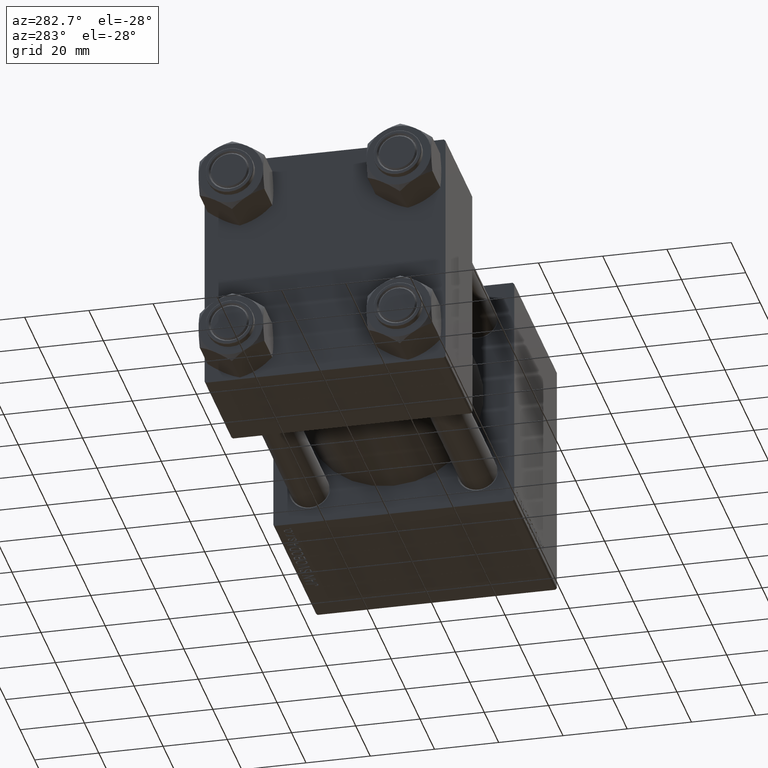
[diagram: clean part render]
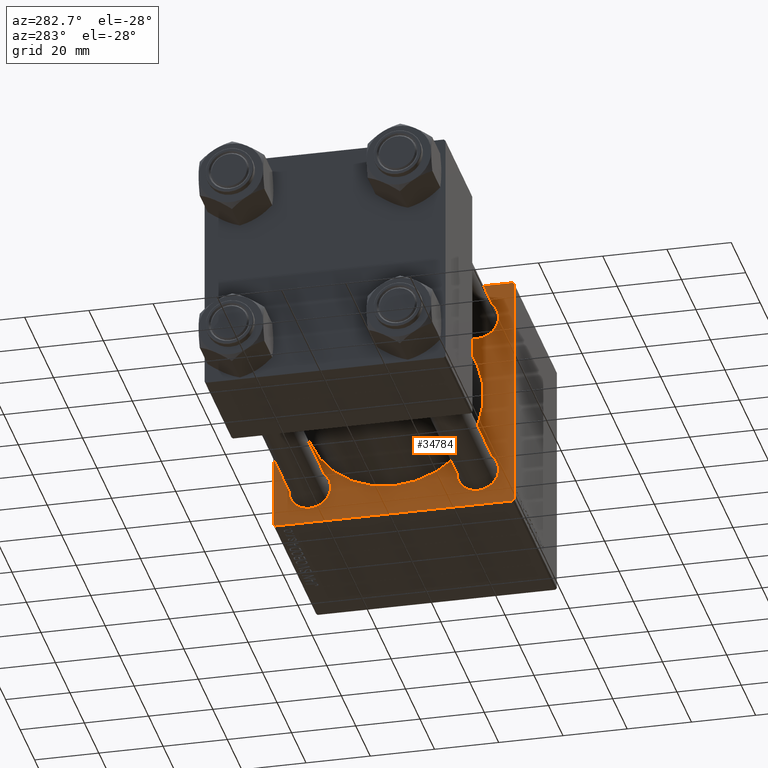
[diagram: same view with one face highlighted and labeled with its STEP entity id]
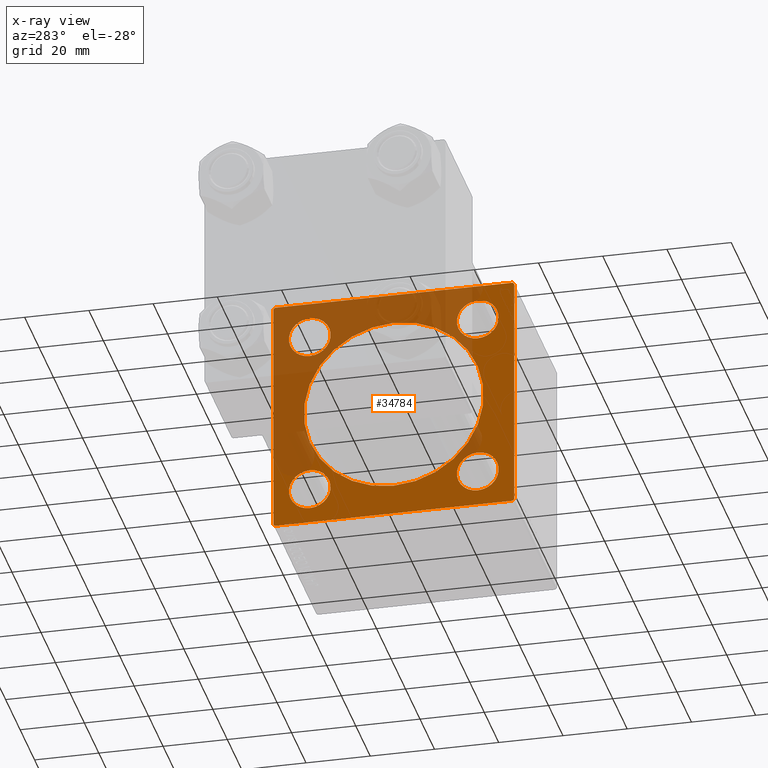
[diagram: x-ray of the same camera — body ghosted, the highlighted face saturated]
A machine part, auxiliary view. The second image highlights one B-rep face of the part: STEP entity #34784.
The next image is the same camera in x-ray: the body ghosted, the highlighted face saturated — about 46% of this face is hidden behind the body in this view.
In plain terms, the highlighted planar face has unit normal (-1, 0, 0).
Its self-contained STEP definition (entity closure, byte-faithful):
#74 = CIRCLE ( 'NONE', #8172, 6.500000000000015987 ) ;
#189 = CIRCLE ( 'NONE', #5878, 6.500000000000015987 ) ;
#226 = VECTOR ( 'NONE', #5797, 1000.000000000000000 ) ;
#645 = CIRCLE ( 'NONE', #4718, 6.500000000000008882 ) ;
#2200 = DIRECTION ( 'NONE',  ( -0.000000000000000000, -0.7071067811865425767, -0.7071067811865525687 ) ) ;
#2249 = LINE ( 'NONE', #13665, #226 ) ;
#2976 = CARTESIAN_POINT ( 'NONE',  ( 95.00000000000000000, -37.50000000000000000, 36.99999999999995026 ) ) ;
#3173 = EDGE_CURVE ( 'NONE', #34468, #45483, #16143, .T. ) ;
#3283 = CARTESIAN_POINT ( 'NONE',  ( 95.00000000000000000, -26.14999999999999147, 26.15000000000000924 ) ) ;
#3485 = VERTEX_POINT ( 'NONE', #18437 ) ;
#3633 = DIRECTION ( 'NONE',  ( 0.000000000000000000, 0.000000000000000000, 1.000000000000000000 ) ) ;
#3780 = EDGE_CURVE ( 'NONE', #13794, #49124, #32805, .T. ) ;
#4020 = VECTOR ( 'NONE', #28514, 1000.000000000000000 ) ;
#4362 = AXIS2_PLACEMENT_3D ( 'NONE', #18835, #11461, #23137 ) ;
#4611 = VECTOR ( 'NONE', #25439, 1000.000000000000000 ) ;
#4718 = AXIS2_PLACEMENT_3D ( 'NONE', #7326, #49477, #31177 ) ;
#4911 = VECTOR ( 'NONE', #37124, 1000.000000000000114 ) ;
#5716 = DIRECTION ( 'NONE',  ( 0.000000000000000000, 0.7071067811865474617, -0.7071067811865474617 ) ) ;
#5797 = DIRECTION ( 'NONE',  ( 0.000000000000000000, -9.251858538542972814E-17, -1.000000000000000000 ) ) ;
#5878 = AXIS2_PLACEMENT_3D ( 'NONE', #11725, #41965, #3633 ) ;
#5986 = CIRCLE ( 'NONE', #4362, 6.500000000000015987 ) ;
#6418 = DIRECTION ( 'NONE',  ( 0.000000000000000000, -0.7071067811865671127, 0.7071067811865279218 ) ) ;
#6815 = DIRECTION ( 'NONE',  ( 0.000000000000000000, -1.000000000000000000, -1.850371707708594316E-16 ) ) ;
#6859 = CARTESIAN_POINT ( 'NONE',  ( 95.00000000000000000, 26.14999999999999858, 26.15000000000000213 ) ) ;
#6974 = CARTESIAN_POINT ( 'NONE',  ( 95.00000000000000000, -26.14999999999999147, -32.65000000000002700 ) ) ;
#7326 = CARTESIAN_POINT ( 'NONE',  ( 95.00000000000000000, 26.14999999999999858, 26.15000000000000213 ) ) ;
#7676 = PLANE ( 'NONE',  #35889 ) ;
#7798 = VERTEX_POINT ( 'NONE', #18866 ) ;
#8023 = ORIENTED_EDGE ( 'NONE', *, *, #21198, .T. ) ;
#8172 = AXIS2_PLACEMENT_3D ( 'NONE', #47089, #15379, #46348 ) ;
#8479 = EDGE_CURVE ( 'NONE', #48807, #32603, #25856, .T. ) ;
#9234 = ORIENTED_EDGE ( 'NONE', *, *, #48472, .T. ) ;
#9457 = CIRCLE ( 'NONE', #44313, 28.00000000000000000 ) ;
#9703 = CARTESIAN_POINT ( 'NONE',  ( 95.00000000000000000, 37.00000000000000000, 37.49999999999999289 ) ) ;
#9893 = VERTEX_POINT ( 'NONE', #2976 ) ;
#9956 = EDGE_CURVE ( 'NONE', #28797, #44803, #74, .T. ) ;
#9957 = CARTESIAN_POINT ( 'NONE',  ( 95.00000000000000000, 37.50000000000000000, 37.49999999999999289 ) ) ;
#10252 = DIRECTION ( 'NONE',  ( 1.000000000000000000, 0.000000000000000000, -0.000000000000000000 ) ) ;
#10725 = CARTESIAN_POINT ( 'NONE',  ( 95.00000000000000000, -37.24999999999896261, -37.25000000000103029 ) ) ;
#10843 = ORIENTED_EDGE ( 'NONE', *, *, #20942, .T. ) ;
#10910 = EDGE_CURVE ( 'NONE', #48807, #35423, #20951, .T. ) ;
#11087 = CIRCLE ( 'NONE', #41906, 6.500000000000015987 ) ;
#11453 = CARTESIAN_POINT ( 'NONE',  ( 95.00000000000000000, -2.602085213965210642E-15, 0.000000000000000000 ) ) ;
#11461 = DIRECTION ( 'NONE',  ( 1.000000000000000000, 0.000000000000000000, -0.000000000000000000 ) ) ;
#11484 = FACE_OUTER_BOUND ( 'NONE', #37388, .T. ) ;
#11725 = CARTESIAN_POINT ( 'NONE',  ( 95.00000000000000000, 26.14999999999999858, -26.15000000000000213 ) ) ;
#11872 = EDGE_LOOP ( 'NONE', ( #21462, #33649 ) ) ;
#11878 = AXIS2_PLACEMENT_3D ( 'NONE', #25998, #10252, #45286 ) ;
#12378 = CARTESIAN_POINT ( 'NONE',  ( 95.00000000000000000, -2.602085213965210642E-15, 0.000000000000000000 ) ) ;
#12767 = CARTESIAN_POINT ( 'NONE',  ( 95.00000000000000000, -36.99999999999997158, 37.49999999999997868 ) ) ;
#13008 = CARTESIAN_POINT ( 'NONE',  ( 95.00000000000000000, 37.50000000000000000, -37.50000000000000000 ) ) ;
#13132 = CARTESIAN_POINT ( 'NONE',  ( 95.00000000000000000, 26.14999999999999858, -32.65000000000001990 ) ) ;
#13665 = CARTESIAN_POINT ( 'NONE',  ( 95.00000000000000000, -37.50000000000000000, 37.49999999999997868 ) ) ;
#13794 = VERTEX_POINT ( 'NONE', #30770 ) ;
#13966 = DIRECTION ( 'NONE',  ( 1.000000000000000000, 0.000000000000000000, -0.000000000000000000 ) ) ;
#14092 = CARTESIAN_POINT ( 'NONE',  ( 95.00000000000000000, -26.14999999999999147, 19.64999999999999147 ) ) ;
#15183 = CARTESIAN_POINT ( 'NONE',  ( 95.00000000000000000, 37.50000000000000000, 37.49999999999999289 ) ) ;
#15379 = DIRECTION ( 'NONE',  ( 1.000000000000000000, 0.000000000000000000, -0.000000000000000000 ) ) ;
#15997 = DIRECTION ( 'NONE',  ( 0.000000000000000000, 0.000000000000000000, -1.000000000000000000 ) ) ;
#16143 = CIRCLE ( 'NONE', #38060, 6.500000000000015987 ) ;
#16620 = VERTEX_POINT ( 'NONE', #18871 ) ;
#16922 = LINE ( 'NONE', #40775, #39001 ) ;
#17074 = LINE ( 'NONE', #21617, #4911 ) ;
#17815 = EDGE_CURVE ( 'NONE', #20702, #7798, #49869, .T. ) ;
#18437 = CARTESIAN_POINT ( 'NONE',  ( 95.00000000000000000, 26.14999999999999858, 19.64999999999999147 ) ) ;
#18835 = CARTESIAN_POINT ( 'NONE',  ( 95.00000000000000000, -26.14999999999999147, -26.15000000000000924 ) ) ;
#18866 = CARTESIAN_POINT ( 'NONE',  ( 95.00000000000000000, -2.602085213965210642E-15, 28.00000000000000000 ) ) ;
#18871 = CARTESIAN_POINT ( 'NONE',  ( 95.00000000000000000, 37.50000000000000000, -36.99999999999999289 ) ) ;
#19272 = EDGE_LOOP ( 'NONE', ( #34968, #36204 ) ) ;
#19537 = ORIENTED_EDGE ( 'NONE', *, *, #8479, .F. ) ;
#19801 = DIRECTION ( 'NONE',  ( 1.000000000000000000, 0.000000000000000000, 0.000000000000000000 ) ) ;
#20702 = VERTEX_POINT ( 'NONE', #50063 ) ;
#20942 = EDGE_CURVE ( 'NONE', #41511, #37515, #11087, .T. ) ;
#20951 = LINE ( 'NONE', #21436, #37362 ) ;
#21198 = EDGE_CURVE ( 'NONE', #35423, #16620, #22140, .T. ) ;
#21242 = CIRCLE ( 'NONE', #22883, 6.500000000000008882 ) ;
#21436 = CARTESIAN_POINT ( 'NONE',  ( 95.00000000000000000, 37.25000000000000000, 37.25000000000000000 ) ) ;
#21462 = ORIENTED_EDGE ( 'NONE', *, *, #9956, .T. ) ;
#21617 = CARTESIAN_POINT ( 'NONE',  ( 95.00000000000000000, -37.24999999999997158, 37.24999999999997158 ) ) ;
#22038 = EDGE_CURVE ( 'NONE', #49124, #35383, #26477, .T. ) ;
#22076 = CARTESIAN_POINT ( 'NONE',  ( 95.00000000000000000, -37.50000000000000711, -37.00000000000000711 ) ) ;
#22140 = LINE ( 'NONE', #9957, #4611 ) ;
#22364 = VECTOR ( 'NONE', #6418, 1000.000000000000000 ) ;
#22418 = DIRECTION ( 'NONE',  ( -1.000000000000000000, -0.000000000000000000, 0.000000000000000000 ) ) ;
#22666 = FACE_BOUND ( 'NONE', #19272, .T. ) ;
#22720 = ORIENTED_EDGE ( 'NONE', *, *, #3780, .T. ) ;
#22768 = CARTESIAN_POINT ( 'NONE',  ( 95.00000000000000000, -36.99999999999998579, -37.50000000000000000 ) ) ;
#22883 = AXIS2_PLACEMENT_3D ( 'NONE', #6859, #13966, #45436 ) ;
#23137 = DIRECTION ( 'NONE',  ( 0.000000000000000000, 0.000000000000000000, 1.000000000000000000 ) ) ;
#25150 = EDGE_CURVE ( 'NONE', #7798, #20702, #9457, .T. ) ;
#25439 = DIRECTION ( 'NONE',  ( 0.000000000000000000, 0.000000000000000000, -1.000000000000000000 ) ) ;
#25586 = EDGE_LOOP ( 'NONE', ( #40911, #37528 ) ) ;
#25856 = LINE ( 'NONE', #15183, #41337 ) ;
#25998 = CARTESIAN_POINT ( 'NONE',  ( 95.00000000000000000, -26.14999999999999147, 26.15000000000000924 ) ) ;
#26192 = CARTESIAN_POINT ( 'NONE',  ( 95.00000000000000000, 26.14999999999999858, -19.64999999999998792 ) ) ;
#26477 = LINE ( 'NONE', #10725, #22364 ) ;
#26593 = DIRECTION ( 'NONE',  ( 1.000000000000000000, 0.000000000000000000, -0.000000000000000000 ) ) ;
#26790 = ORIENTED_EDGE ( 'NONE', *, *, #10910, .T. ) ;
#26814 = CARTESIAN_POINT ( 'NONE',  ( 95.00000000000000000, 26.14999999999999858, 32.65000000000001990 ) ) ;
#26976 = FACE_BOUND ( 'NONE', #11872, .T. ) ;
#27283 = ORIENTED_EDGE ( 'NONE', *, *, #3173, .T. ) ;
#27847 = EDGE_CURVE ( 'NONE', #3485, #28087, #645, .T. ) ;
#28087 = VERTEX_POINT ( 'NONE', #26814 ) ;
#28151 = EDGE_LOOP ( 'NONE', ( #10843, #29272 ) ) ;
#28514 = DIRECTION ( 'NONE',  ( 0.000000000000000000, -1.000000000000000000, 0.000000000000000000 ) ) ;
#28604 = ORIENTED_EDGE ( 'NONE', *, *, #22038, .T. ) ;
#28763 = EDGE_CURVE ( 'NONE', #9893, #32603, #17074, .T. ) ;
#28797 = VERTEX_POINT ( 'NONE', #26192 ) ;
#29272 = ORIENTED_EDGE ( 'NONE', *, *, #38400, .T. ) ;
#30661 = CARTESIAN_POINT ( 'NONE',  ( 95.00000000000000000, -26.14999999999999147, -26.15000000000000924 ) ) ;
#30770 = CARTESIAN_POINT ( 'NONE',  ( 95.00000000000000000, 37.00000000000000000, -37.50000000000000000 ) ) ;
#31177 = DIRECTION ( 'NONE',  ( 0.000000000000000000, 0.000000000000000000, 1.000000000000000000 ) ) ;
#31207 = EDGE_CURVE ( 'NONE', #16620, #13794, #16922, .T. ) ;
#31643 = EDGE_LOOP ( 'NONE', ( #9234, #27283 ) ) ;
#32603 = VERTEX_POINT ( 'NONE', #12767 ) ;
#32761 = CARTESIAN_POINT ( 'NONE',  ( 95.00000000000000000, 37.50000000000000000, 36.99999999999999289 ) ) ;
#32805 = LINE ( 'NONE', #13008, #4020 ) ;
#33649 = ORIENTED_EDGE ( 'NONE', *, *, #34725, .T. ) ;
#33824 = EDGE_CURVE ( 'NONE', #28087, #3485, #21242, .T. ) ;
#33888 = ORIENTED_EDGE ( 'NONE', *, *, #31207, .T. ) ;
#34101 = DIRECTION ( 'NONE',  ( 0.000000000000000000, 0.000000000000000000, 1.000000000000000000 ) ) ;
#34468 = VERTEX_POINT ( 'NONE', #14092 ) ;
#34725 = EDGE_CURVE ( 'NONE', #44803, #28797, #189, .T. ) ;
#34784 = ADVANCED_FACE ( 'NONE', ( #42209, #22666, #26976, #50078, #42455, #11484 ), #7676, .T. ) ;
#34968 = ORIENTED_EDGE ( 'NONE', *, *, #33824, .T. ) ;
#35109 = CARTESIAN_POINT ( 'NONE',  ( 95.00000000000000000, -26.14999999999999147, 32.65000000000003411 ) ) ;
#35199 = ORIENTED_EDGE ( 'NONE', *, *, #36310, .F. ) ;
#35300 = AXIS2_PLACEMENT_3D ( 'NONE', #11453, #19801, #15997 ) ;
#35383 = VERTEX_POINT ( 'NONE', #22076 ) ;
#35423 = VERTEX_POINT ( 'NONE', #32761 ) ;
#35889 = AXIS2_PLACEMENT_3D ( 'NONE', #38654, #22418, #34101 ) ;
#36204 = ORIENTED_EDGE ( 'NONE', *, *, #27847, .T. ) ;
#36310 = EDGE_CURVE ( 'NONE', #9893, #35383, #2249, .T. ) ;
#37124 = DIRECTION ( 'NONE',  ( -0.000000000000000000, 0.7071067811865474617, 0.7071067811865474617 ) ) ;
#37362 = VECTOR ( 'NONE', #5716, 1000.000000000000114 ) ;
#37388 = EDGE_LOOP ( 'NONE', ( #22720, #28604, #35199, #41293, #19537, #26790, #8023, #33888 ) ) ;
#37515 = VERTEX_POINT ( 'NONE', #6974 ) ;
#37528 = ORIENTED_EDGE ( 'NONE', *, *, #17815, .T. ) ;
#38060 = AXIS2_PLACEMENT_3D ( 'NONE', #3283, #45401, #41348 ) ;
#38400 = EDGE_CURVE ( 'NONE', #37515, #41511, #5986, .T. ) ;
#38654 = CARTESIAN_POINT ( 'NONE',  ( 95.00000000000000000, 0.000000000000000000, 0.000000000000000000 ) ) ;
#39001 = VECTOR ( 'NONE', #2200, 999.9999999999998863 ) ;
#40051 = DIRECTION ( 'NONE',  ( 0.000000000000000000, 0.000000000000000000, -1.000000000000000000 ) ) ;
#40775 = CARTESIAN_POINT ( 'NONE',  ( 95.00000000000000000, 37.25000000000026290, -37.24999999999974420 ) ) ;
#40911 = ORIENTED_EDGE ( 'NONE', *, *, #25150, .T. ) ;
#41293 = ORIENTED_EDGE ( 'NONE', *, *, #28763, .T. ) ;
#41337 = VECTOR ( 'NONE', #6815, 1000.000000000000000 ) ;
#41348 = DIRECTION ( 'NONE',  ( 0.000000000000000000, 0.000000000000000000, 1.000000000000000000 ) ) ;
#41511 = VERTEX_POINT ( 'NONE', #44717 ) ;
#41860 = CIRCLE ( 'NONE', #11878, 6.500000000000015987 ) ;
#41906 = AXIS2_PLACEMENT_3D ( 'NONE', #30661, #26593, #49445 ) ;
#41965 = DIRECTION ( 'NONE',  ( 1.000000000000000000, 0.000000000000000000, -0.000000000000000000 ) ) ;
#42209 = FACE_BOUND ( 'NONE', #31643, .T. ) ;
#42455 = FACE_BOUND ( 'NONE', #25586, .T. ) ;
#43860 = DIRECTION ( 'NONE',  ( 1.000000000000000000, 0.000000000000000000, 0.000000000000000000 ) ) ;
#44313 = AXIS2_PLACEMENT_3D ( 'NONE', #12378, #43860, #40051 ) ;
#44717 = CARTESIAN_POINT ( 'NONE',  ( 95.00000000000000000, -26.14999999999999147, -19.64999999999999503 ) ) ;
#44803 = VERTEX_POINT ( 'NONE', #13132 ) ;
#45286 = DIRECTION ( 'NONE',  ( 0.000000000000000000, 0.000000000000000000, 1.000000000000000000 ) ) ;
#45401 = DIRECTION ( 'NONE',  ( 1.000000000000000000, 0.000000000000000000, -0.000000000000000000 ) ) ;
#45436 = DIRECTION ( 'NONE',  ( 0.000000000000000000, 0.000000000000000000, 1.000000000000000000 ) ) ;
#45483 = VERTEX_POINT ( 'NONE', #35109 ) ;
#46348 = DIRECTION ( 'NONE',  ( 0.000000000000000000, 0.000000000000000000, 1.000000000000000000 ) ) ;
#47089 = CARTESIAN_POINT ( 'NONE',  ( 95.00000000000000000, 26.14999999999999858, -26.15000000000000213 ) ) ;
#48472 = EDGE_CURVE ( 'NONE', #45483, #34468, #41860, .T. ) ;
#48807 = VERTEX_POINT ( 'NONE', #9703 ) ;
#49124 = VERTEX_POINT ( 'NONE', #22768 ) ;
#49445 = DIRECTION ( 'NONE',  ( 0.000000000000000000, 0.000000000000000000, 1.000000000000000000 ) ) ;
#49477 = DIRECTION ( 'NONE',  ( 1.000000000000000000, 0.000000000000000000, -0.000000000000000000 ) ) ;
#49869 = CIRCLE ( 'NONE', #35300, 28.00000000000000000 ) ;
#50063 = CARTESIAN_POINT ( 'NONE',  ( 95.00000000000000000, 8.269258236473776482E-16, -28.00000000000000000 ) ) ;
#50078 = FACE_BOUND ( 'NONE', #28151, .T. ) ;